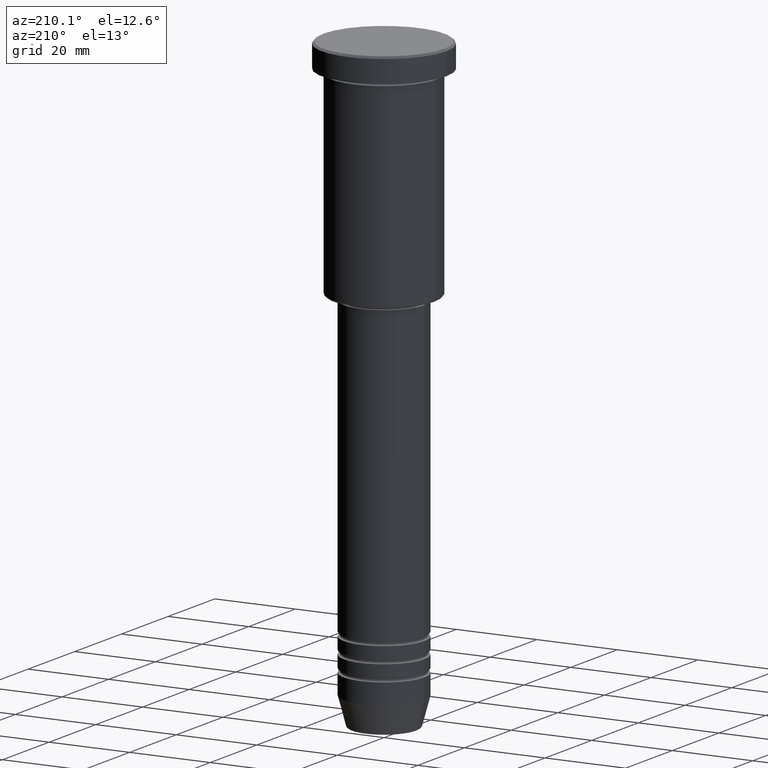
[diagram: clean part render]
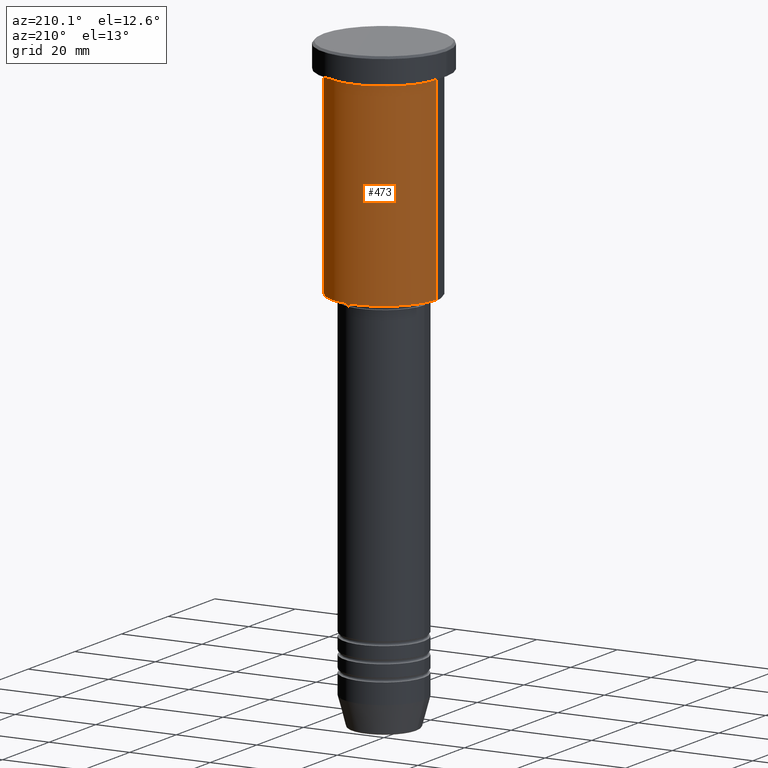
[diagram: same view with one face highlighted and labeled with its STEP entity id]
A machine part, auxiliary view. The second image highlights one B-rep face of the part: STEP entity #473.
In plain terms, the highlighted cylindrical surface (partial cylindrical patch) has radius 13 mm, axis along (-0, -0, 1).
Its self-contained STEP definition (entity closure, byte-faithful):
#63 = ORIENTED_EDGE ( 'NONE', *, *, #138, .T. ) ;
#100 = LINE ( 'NONE', #1105, #1164 ) ;
#138 = EDGE_CURVE ( 'NONE', #558, #156, #540, .T. ) ;
#154 = VERTEX_POINT ( 'NONE', #889 ) ;
#156 = VERTEX_POINT ( 'NONE', #536 ) ;
#188 = CARTESIAN_POINT ( 'NONE',  ( 0.000000000000000000, 0.000000000000000000, 0.000000000000000000 ) ) ;
#241 = DIRECTION ( 'NONE',  ( 1.000000000000000000, 0.000000000000000000, 0.000000000000000000 ) ) ;
#257 = CARTESIAN_POINT ( 'NONE',  ( -13.00000000000000178, 1.592040838891559293E-15, 0.000000000000000000 ) ) ;
#267 = CIRCLE ( 'NONE', #299, 13.00000000000000178 ) ;
#297 = FACE_OUTER_BOUND ( 'NONE', #634, .T. ) ;
#299 = AXIS2_PLACEMENT_3D ( 'NONE', #589, #937, #849 ) ;
#384 = DIRECTION ( 'NONE',  ( -0.000000000000000000, -0.000000000000000000, 1.000000000000000000 ) ) ;
#467 = CYLINDRICAL_SURFACE ( 'NONE', #909, 13.00000000000000178 ) ;
#473 = ADVANCED_FACE ( 'NONE', ( #297 ), #467, .T. ) ;
#529 = AXIS2_PLACEMENT_3D ( 'NONE', #773, #693, #241 ) ;
#534 = CARTESIAN_POINT ( 'NONE',  ( 13.00000000000000178, 0.000000000000000000, -6.999999999999995559 ) ) ;
#536 = CARTESIAN_POINT ( 'NONE',  ( -13.00000000000000178, 1.592040838891559293E-15, -6.999999999999995559 ) ) ;
#540 = LINE ( 'NONE', #257, #1117 ) ;
#555 = EDGE_CURVE ( 'NONE', #154, #1079, #100, .T. ) ;
#558 = VERTEX_POINT ( 'NONE', #907 ) ;
#589 = CARTESIAN_POINT ( 'NONE',  ( 0.000000000000000000, 0.000000000000000000, -55.50000000000001421 ) ) ;
#634 = EDGE_LOOP ( 'NONE', ( #1124, #63, #970, #847 ) ) ;
#693 = DIRECTION ( 'NONE',  ( -0.000000000000000000, -0.000000000000000000, 1.000000000000000000 ) ) ;
#721 = EDGE_CURVE ( 'NONE', #154, #558, #267, .T. ) ;
#773 = CARTESIAN_POINT ( 'NONE',  ( 0.000000000000000000, 0.000000000000000000, -6.999999999999995559 ) ) ;
#831 = DIRECTION ( 'NONE',  ( 1.000000000000000000, 0.000000000000000000, 0.000000000000000000 ) ) ;
#847 = ORIENTED_EDGE ( 'NONE', *, *, #555, .F. ) ;
#849 = DIRECTION ( 'NONE',  ( -1.000000000000000000, 0.000000000000000000, 0.000000000000000000 ) ) ;
#889 = CARTESIAN_POINT ( 'NONE',  ( 13.00000000000000178, 0.000000000000000000, -55.50000000000001421 ) ) ;
#907 = CARTESIAN_POINT ( 'NONE',  ( -13.00000000000000178, 1.592040838891559293E-15, -55.50000000000001421 ) ) ;
#909 = AXIS2_PLACEMENT_3D ( 'NONE', #188, #920, #831 ) ;
#920 = DIRECTION ( 'NONE',  ( -0.000000000000000000, -0.000000000000000000, 1.000000000000000000 ) ) ;
#937 = DIRECTION ( 'NONE',  ( -0.000000000000000000, -0.000000000000000000, 1.000000000000000000 ) ) ;
#960 = EDGE_CURVE ( 'NONE', #1079, #156, #1042, .T. ) ;
#970 = ORIENTED_EDGE ( 'NONE', *, *, #960, .F. ) ;
#1042 = CIRCLE ( 'NONE', #529, 13.00000000000000178 ) ;
#1079 = VERTEX_POINT ( 'NONE', #534 ) ;
#1089 = DIRECTION ( 'NONE',  ( -0.000000000000000000, -0.000000000000000000, 1.000000000000000000 ) ) ;
#1105 = CARTESIAN_POINT ( 'NONE',  ( 13.00000000000000178, 0.000000000000000000, 0.000000000000000000 ) ) ;
#1117 = VECTOR ( 'NONE', #1089, 1000.000000000000000 ) ;
#1124 = ORIENTED_EDGE ( 'NONE', *, *, #721, .T. ) ;
#1164 = VECTOR ( 'NONE', #384, 1000.000000000000000 ) ;